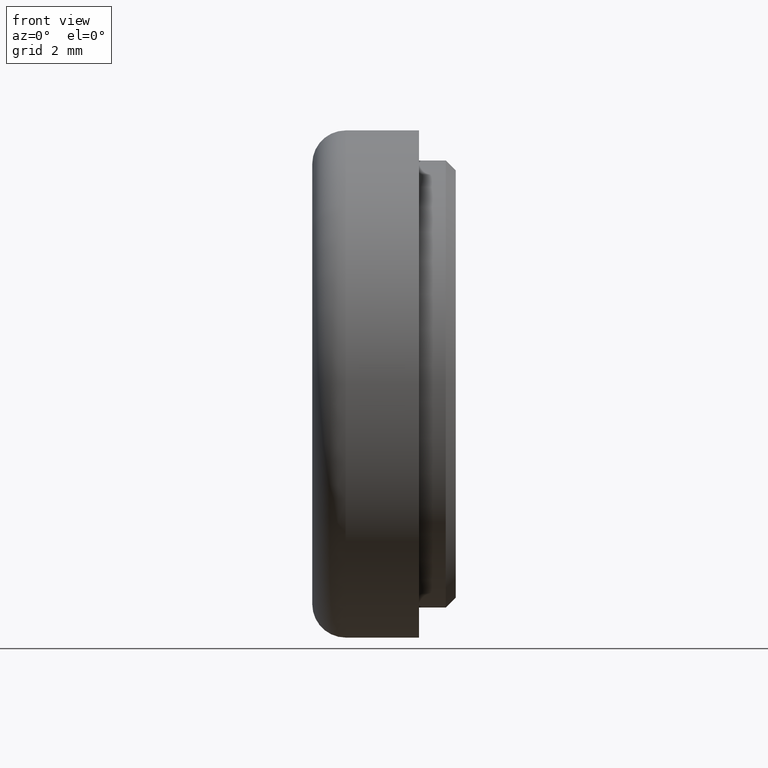
[diagram: clean part render]
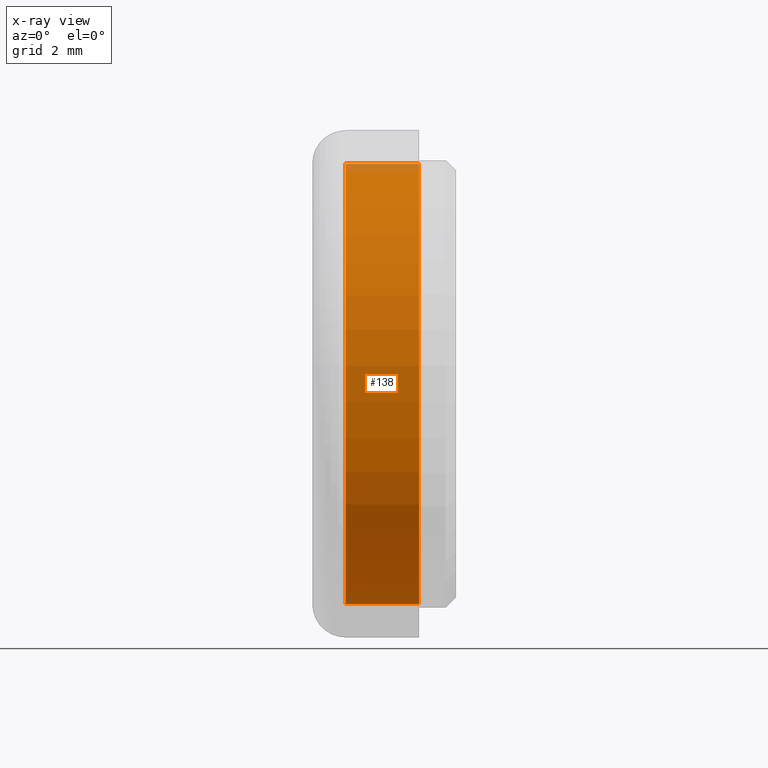
[diagram: x-ray — body ghosted, one internal face saturated and labeled with its STEP entity id]
A machine part, front view, then the same camera in x-ray: the body is ghosted and one INTERNAL B-rep face — a face not visible from any outside direction — is saturated and labeled: STEP entity #138.
In plain terms, the highlighted cylindrical surface (partial cylindrical patch) has radius 6.6 mm, axis along (-1, -0, -0).
Its self-contained STEP definition (entity closure, byte-faithful):
#19 = ORIENTED_EDGE ( 'NONE', *, *, #524, .T. ) ;
#26 = CARTESIAN_POINT ( 'NONE',  ( 2.199999999999993500, 8.082668874372531000E-016, -6.599999999999999600 ) ) ;
#64 = DIRECTION ( 'NONE',  ( -1.000000000000000000, -0.0000000000000000000, -0.0000000000000000000 ) ) ;
#87 = CARTESIAN_POINT ( 'NONE',  ( 0.0000000000000000000, 0.0000000000000000000, 0.0000000000000000000 ) ) ;
#102 = LINE ( 'NONE', #474, #247 ) ;
#106 = DIRECTION ( 'NONE',  ( -1.000000000000000000, -0.0000000000000000000, -0.0000000000000000000 ) ) ;
#107 = LINE ( 'NONE', #342, #241 ) ;
#110 = EDGE_CURVE ( 'NONE', #396, #555, #601, .T. ) ;
#134 = AXIS2_PLACEMENT_3D ( 'NONE', #87, #262, #426 ) ;
#138 = ADVANCED_FACE ( 'NONE', ( #384 ), #696, .T. ) ;
#192 = CIRCLE ( 'NONE', #134, 6.599999999999999600 ) ;
#195 = EDGE_LOOP ( 'NONE', ( #655, #593, #19, #486 ) ) ;
#205 = CARTESIAN_POINT ( 'NONE',  ( 0.0000000000000000000, 8.082668874372531000E-016, -6.599999999999999600 ) ) ;
#239 = DIRECTION ( 'NONE',  ( -1.000000000000000000, -0.0000000000000000000, -0.0000000000000000000 ) ) ;
#241 = VECTOR ( 'NONE', #415, 1000.000000000000000 ) ;
#247 = VECTOR ( 'NONE', #239, 1000.000000000000000 ) ;
#253 = EDGE_CURVE ( 'NONE', #359, #731, #192, .T. ) ;
#262 = DIRECTION ( 'NONE',  ( -1.000000000000000000, -0.0000000000000000000, -0.0000000000000000000 ) ) ;
#280 = DIRECTION ( 'NONE',  ( 0.0000000000000000000, 0.0000000000000000000, 1.000000000000000000 ) ) ;
#321 = AXIS2_PLACEMENT_3D ( 'NONE', #660, #106, #280 ) ;
#342 = CARTESIAN_POINT ( 'NONE',  ( -88.98999999999999500, 8.082668874372531000E-016, -6.599999999999999600 ) ) ;
#359 = VERTEX_POINT ( 'NONE', #205 ) ;
#370 = AXIS2_PLACEMENT_3D ( 'NONE', #435, #64, #466 ) ;
#384 = FACE_OUTER_BOUND ( 'NONE', #195, .T. ) ;
#396 = VERTEX_POINT ( 'NONE', #26 ) ;
#415 = DIRECTION ( 'NONE',  ( -1.000000000000000000, -0.0000000000000000000, -0.0000000000000000000 ) ) ;
#426 = DIRECTION ( 'NONE',  ( 0.0000000000000000000, 0.0000000000000000000, 1.000000000000000000 ) ) ;
#435 = CARTESIAN_POINT ( 'NONE',  ( -88.98999999999999500, 0.0000000000000000000, 0.0000000000000000000 ) ) ;
#466 = DIRECTION ( 'NONE',  ( 0.0000000000000000000, 0.0000000000000000000, 1.000000000000000000 ) ) ;
#474 = CARTESIAN_POINT ( 'NONE',  ( -88.98999999999999500, 0.0000000000000000000, 6.599999999999999600 ) ) ;
#486 = ORIENTED_EDGE ( 'NONE', *, *, #253, .F. ) ;
#524 = EDGE_CURVE ( 'NONE', #555, #731, #102, .T. ) ;
#555 = VERTEX_POINT ( 'NONE', #675 ) ;
#576 = CARTESIAN_POINT ( 'NONE',  ( 0.0000000000000000000, 0.0000000000000000000, 6.599999999999999600 ) ) ;
#593 = ORIENTED_EDGE ( 'NONE', *, *, #110, .T. ) ;
#601 = CIRCLE ( 'NONE', #321, 6.599999999999999600 ) ;
#655 = ORIENTED_EDGE ( 'NONE', *, *, #724, .F. ) ;
#660 = CARTESIAN_POINT ( 'NONE',  ( 2.199999999999993500, 0.0000000000000000000, 0.0000000000000000000 ) ) ;
#675 = CARTESIAN_POINT ( 'NONE',  ( 2.199999999999993500, 0.0000000000000000000, 6.599999999999999600 ) ) ;
#696 = CYLINDRICAL_SURFACE ( 'NONE', #370, 6.599999999999999600 ) ;
#724 = EDGE_CURVE ( 'NONE', #396, #359, #107, .T. ) ;
#731 = VERTEX_POINT ( 'NONE', #576 ) ;